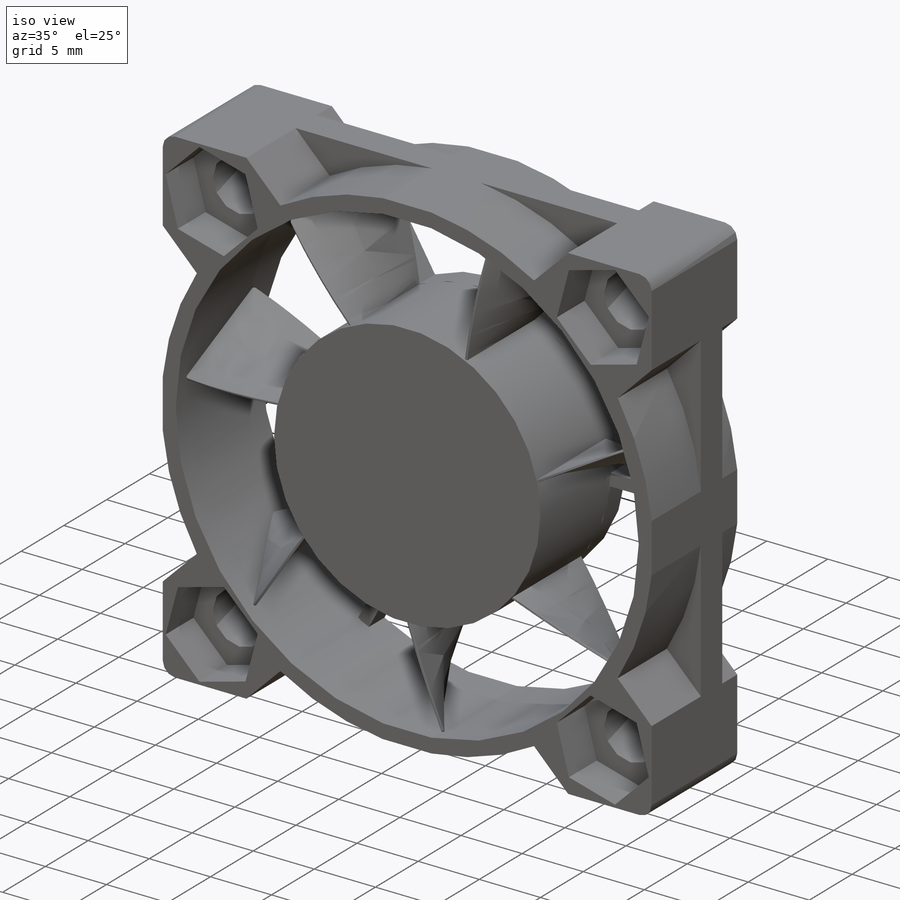
[diagram: iso view]
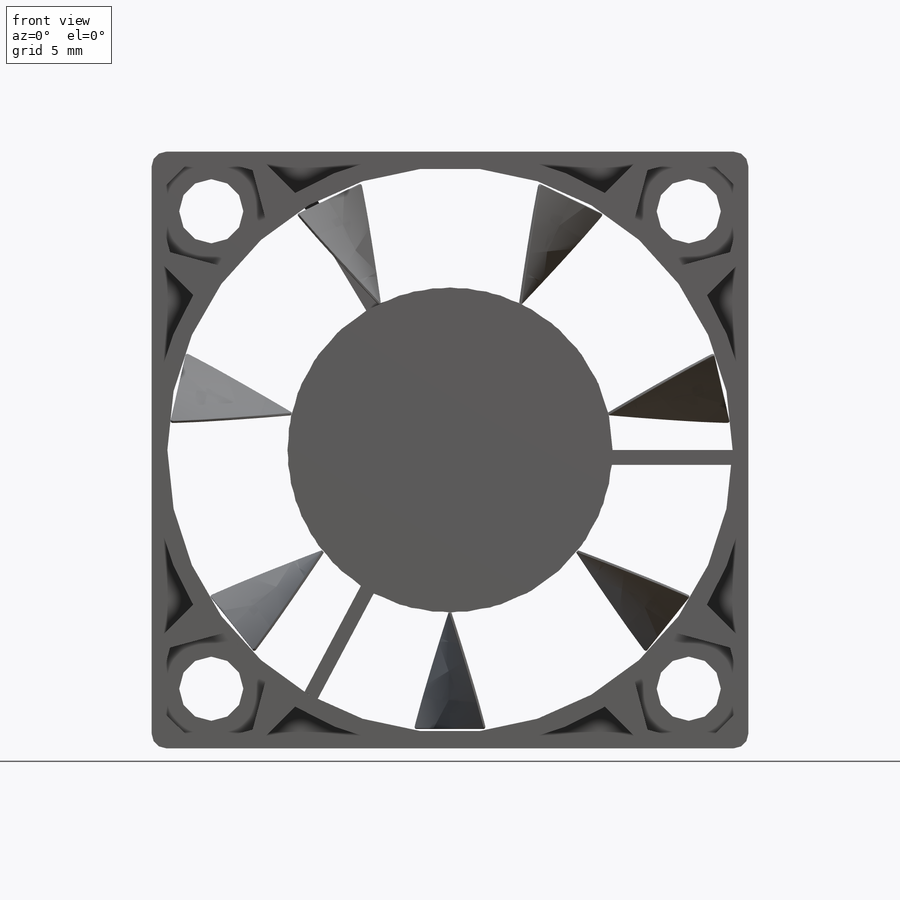
[diagram: front view]
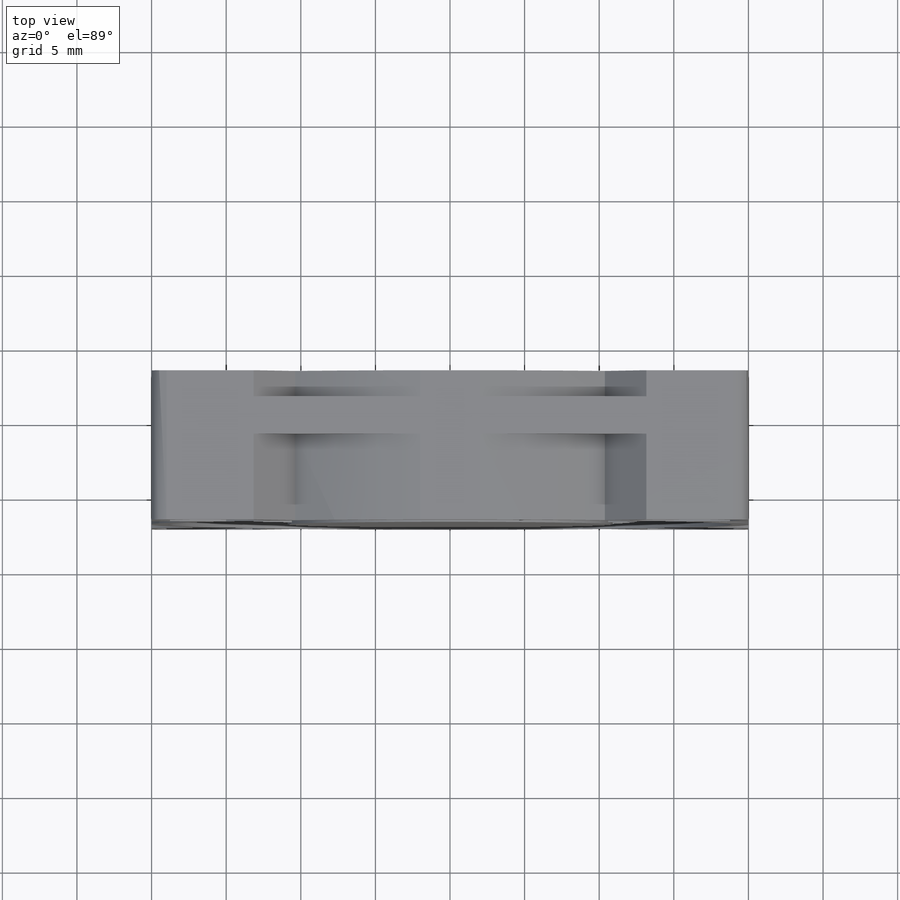
[diagram: top view]
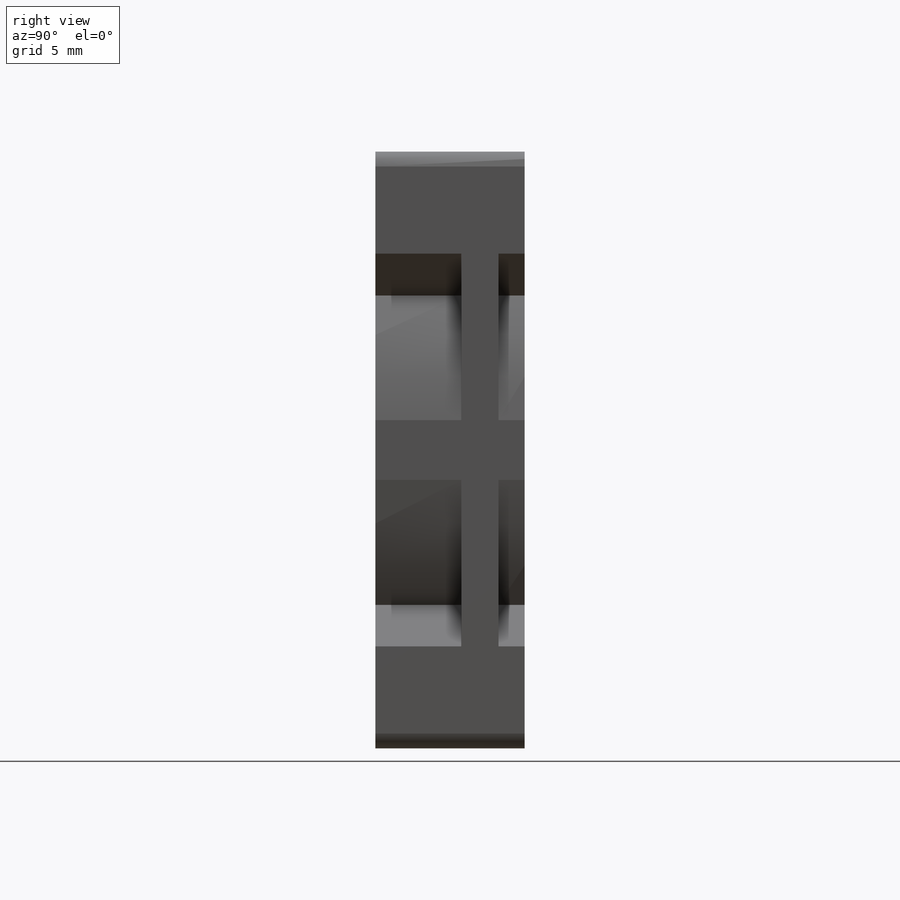
[diagram: right view]
SOLIDWORKS PART (.sldprt)
format: sldprt  version: not decoded by parser v0  size: 773,632 bytes
history: native  units: mm
features: sketch x10, helix x10, extrude x6, mirror x4, plane x3, fillet x3, cut_extrude x2, pattern_circular x2, material x1, sweep x1 (+11 scaffold rows collapsed)
feature tree (53):
  scaffold x11  (default folders/planes/origin — collapsed)
  material  "Material <not specified>"
  plane  "Plane1"  Offset=3mm
  plane  "Plane2"  Offset=10mm
  sketch  "Sketch1"  dims[c1.D9=4.3mm c1.D10=37.88mm c1.D1=20.0mm c1.D2=20.0mm c2.D1=~6.430604mm c2.D10=32.0mm c3.D1=20.0mm c3.D2=20.0mm c3.D3=20.0mm c3.D4=20.0mm c3.D5=16.0mm c3.D6=16.0mm c3.D7=16.0mm c3.D8=16.0mm]
  extrude  "Extrude1"  Depth=1.25mm
  sketch  "Sketch3"  dims[D3=20.0mm D1=4.835mm D2=4.835mm]
  extrude  "Extrude2"  [1 undecoded]
  sketch  "Sketch4"  dims[D1=4.3mm]
  cut_extrude  "Cut-Extrude1"  Depth=3.24mm
  mirror  "Mirror1"
  mirror  "Mirror2"
  sketch  "Sketch5"
  extrude  "Extrude3"  [1 undecoded]
  sketch  "Sketch6"
  cut_extrude  "Cut-Extrude2"  Depth=2.21mm
  mirror  "Mirror3"
  mirror  "Mirror4"
  fillet  "Fillet1"  Radius=1mm
  sketch  "Sketch7"  dims[D1=~0.010895mm]
  extrude  "Extrude4"  Depth=1.8mm
  sketch  "Sketch8"  dims[D1=1.0mm D2=1.0mm D3=0.01mm]
  extrude  "Extrude5"  Depth=1.8mm
  pattern_circular  "CirPattern1"  Count=3 Angle=242deg
  sketch  "Sketch9"
  extrude  "Extrude6"  [1 undecoded]
  plane  "Plane3"
  sketch  "Sketch11"
  helix  "Helix/Spiral1"  Pitch=7.8mm
  sketch  "Sketch10"  dims[c1.D3=8.2mm c1.D2=0.2mm c2.D3=8.2mm c2.D1=0.1mm c2.D2=0.1mm c3.D3=4.0mm c3.D4=4.0mm]
  sweep  "Sweep2"
  fillet  "Fillet2"  Radius=0.2mm
  fillet  "Fillet3"  Radius=0.05mm
  pattern_circular  "CirPattern3"  Count=7 Angle=360deg PW2_UID_val=0
  helix  "pw2 (2)"  Pitch=0 PW2_UID_val=0
  helix  "pw2 (3)"  Pitch=0 PW2_UID_val=0
  helix  "pw2 (4)"  Pitch=0 PW2_UID_val=0
  helix  "pw2 (5)"  Pitch=0 PW2_UID_val=0
  helix  "pw2 (6)"  Pitch=0 PW2_UID_val=0
  helix  "pw2 (7)"  Pitch=0 PW2_UID_val=0
  helix  "pw2 (8)"  Pitch=0 PW2_UID_val=0
  helix  "pw2 (9)"  Pitch=0 PW2_UID_val=0
  helix  "pw2 (10)"  Pitch=0 PW2_UID_val=0
decode coverage: 26 of 38 modeling features carry decoded parameters
note: ~ marks probable driven/reference dimensions
note: 3 parameter values undecoded
summary: no parameter record found for 3 features
note: suppression state not decoded; provenance and decode notes live in map.json
